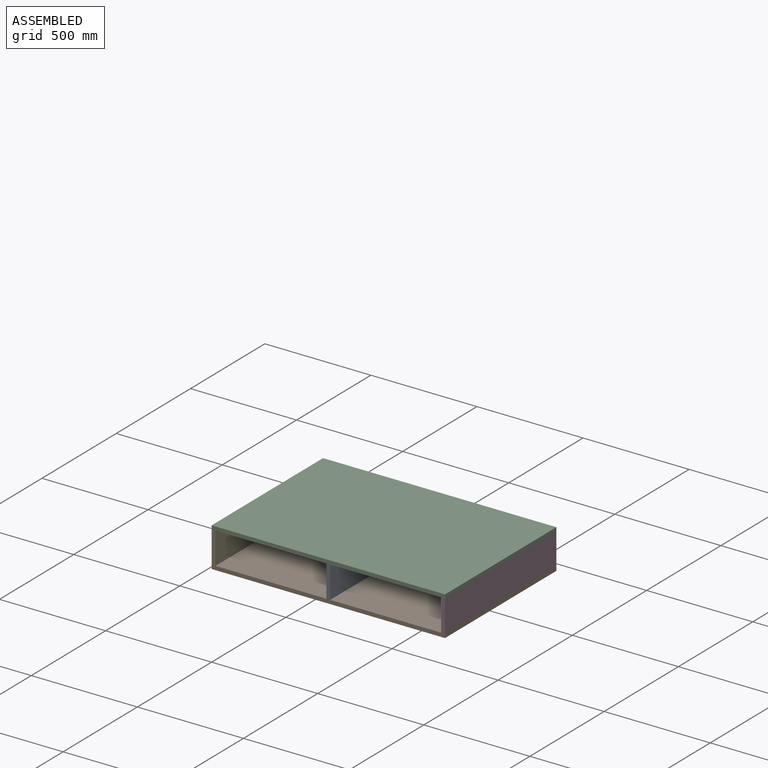
[diagram: assembled view]
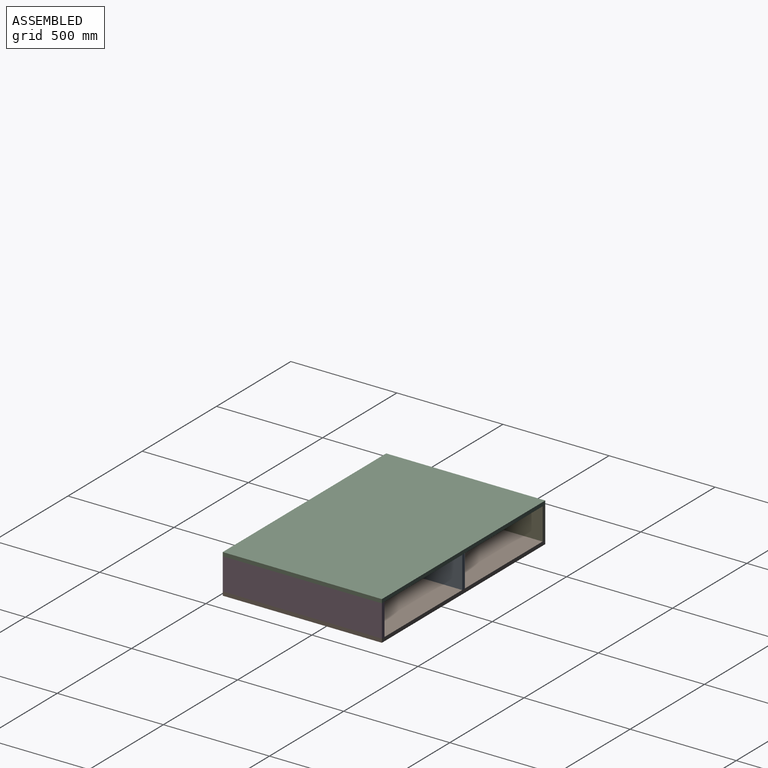
[diagram: assembled view, second angle]
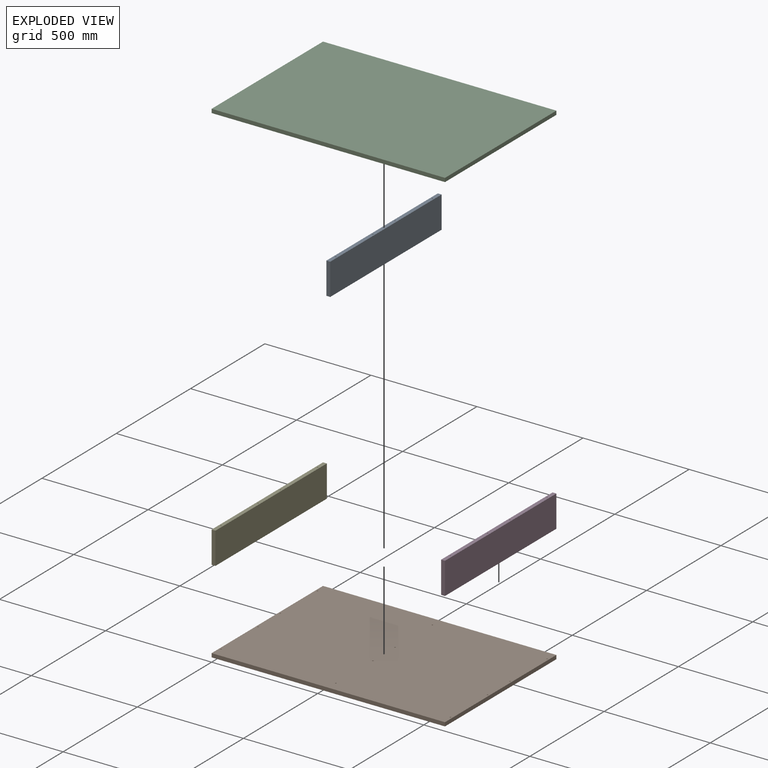
[diagram: exploded view]
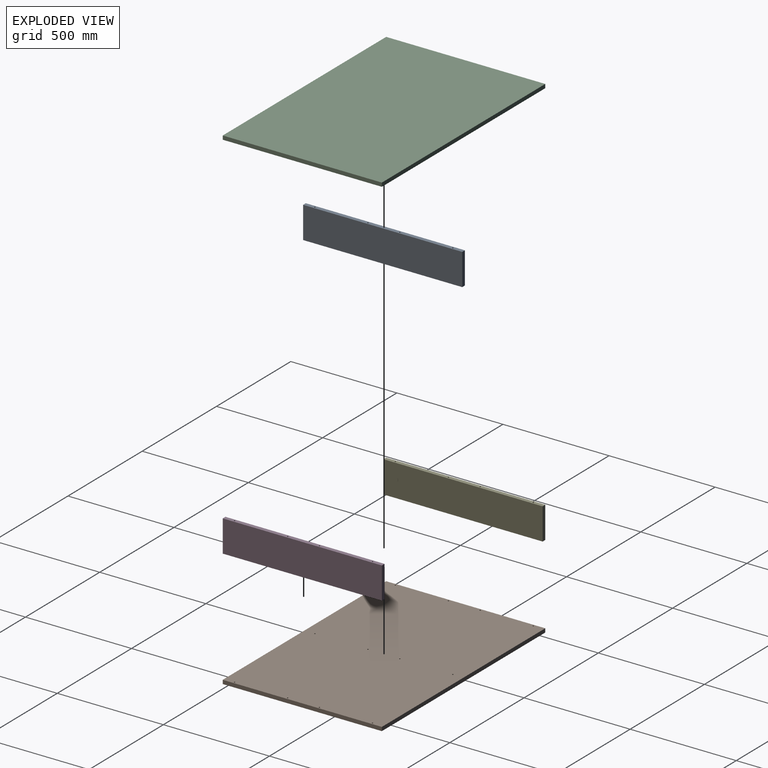
[diagram: exploded view, second angle]
ASSEMBLY  parts=5 mates=4
PART A: 22 faces, bbox 18x750x150 mm
  f0: plane 750x150mm, normal (-1,0,0), area 112500mm2, adj f1,f3,f4,f5
  f1: plane 150x18mm, normal (0,-1,0), area 2700mm2, adj f0,f2,f4,f5
  f2: plane 750x150mm, normal (1,0,0), area 112500mm2, adj f1,f3,f4,f5
  f3: plane 150x18mm, normal (0,1,0), area 2700mm2, adj f0,f2,f4,f5
  f4: plane 750x18mm, normal (0,0,1), area 13386.9mm2, adj f0,f1,f2,f3,f6,f8,f10,f12
  f5: plane 750x18mm, normal (0,0,-1), area 13386.9mm2, adj f0,f1,f2,f3,f14,f16,f18,f20
  f6: cylinder r=3mm len=30mm, axis (0,0,1), area 565.5mm2, adj f4,f7
  f7: plane 6x6mm, normal (0,0,1), area 28.3mm2, adj f6
  f8: cylinder r=3mm len=30mm, axis (0,0,1), area 565.5mm2, adj f4,f9
  f9: plane 6x6mm, normal (0,0,1), area 28.3mm2, adj f8
  f10: cylinder r=3mm len=30mm, axis (0,0,1), area 565.5mm2, adj f4,f11
  f11: plane 6x6mm, normal (0,0,1), area 28.3mm2, adj f10
  f12: cylinder r=3mm len=30mm, axis (0,0,1), area 565.5mm2, adj f4,f13
  f13: plane 6x6mm, normal (0,0,1), area 28.3mm2, adj f12
  f14: cylinder r=3mm len=30mm, axis (0,0,-1), area 565.5mm2, adj f5,f15
  f15: plane 6x6mm, normal (0,0,-1), area 28.3mm2, adj f14
  f16: cylinder r=3mm len=30mm, axis (0,0,-1), area 565.5mm2, adj f5,f17
  f17: plane 6x6mm, normal (0,0,-1), area 28.3mm2, adj f16
  f18: cylinder r=3mm len=30mm, axis (0,0,-1), area 565.5mm2, adj f5,f19
  f19: plane 6x6mm, normal (0,0,-1), area 28.3mm2, adj f18
  f20: cylinder r=3mm len=30mm, axis (0,0,-1), area 565.5mm2, adj f5,f21
  f21: plane 6x6mm, normal (0,0,-1), area 28.3mm2, adj f20
PART B: 30 faces, bbox 1100x750x18 mm
  f0: plane 750x18mm, normal (-1,0,0), area 13500mm2, adj f1,f3,f4,f5
  f1: plane 1100x18mm, normal (0,-1,0), area 19800mm2, adj f0,f2,f4,f5
  f2: plane 750x18mm, normal (1,0,0), area 13500mm2, adj f1,f3,f4,f5
  f3: plane 1100x18mm, normal (0,1,0), area 19800mm2, adj f0,f2,f4,f5
  f4: plane 1100x750mm, normal (0,0,1), area 824660.7mm2, adj f0,f1,f2,f3,f6,f8,f10,f12
  f5: plane 1100x750mm, normal (0,0,-1), area 825000mm2, adj f0,f1,f2,f3
  f6: cylinder r=3mm len=9mm, axis (0,0,1), area 169.6mm2, adj f4,f7
  f7: plane 6x6mm, normal (0,0,1), area 28.3mm2, adj f6
  f8: cylinder r=3mm len=9mm, axis (0,0,1), area 169.6mm2, adj f4,f9
  f9: plane 6x6mm, normal (0,0,1), area 28.3mm2, adj f8
  f10: cylinder r=3mm len=9mm, axis (0,0,1), area 169.6mm2, adj f4,f11
  f11: plane 6x6mm, normal (0,0,1), area 28.3mm2, adj f10
  f12: cylinder r=3mm len=9mm, axis (0,0,1), area 169.6mm2, adj f4,f13
  f13: plane 6x6mm, normal (0,0,1), area 28.3mm2, adj f12
  f14: cylinder r=3mm len=9mm, axis (0,0,1), area 169.6mm2, adj f4,f15
  f15: plane 6x6mm, normal (0,0,1), area 28.3mm2, adj f14
  f16: cylinder r=3mm len=9mm, axis (0,0,1), area 169.6mm2, adj f4,f17
  f17: plane 6x6mm, normal (0,0,1), area 28.3mm2, adj f16
  f18: cylinder r=3mm len=9mm, axis (0,0,1), area 169.6mm2, adj f4,f19
  f19: plane 6x6mm, normal (0,0,1), area 28.3mm2, adj f18
  f20: cylinder r=3mm len=9mm, axis (0,0,1), area 169.6mm2, adj f4,f21
  f21: plane 6x6mm, normal (0,0,1), area 28.3mm2, adj f20
  f22: cylinder r=3mm len=9mm, axis (0,0,1), area 169.6mm2, adj f4,f23
  f23: plane 6x6mm, normal (0,0,1), area 28.3mm2, adj f22
  f24: cylinder r=3mm len=9mm, axis (0,0,1), area 169.6mm2, adj f4,f25
  f25: plane 6x6mm, normal (0,0,1), area 28.3mm2, adj f24
  f26: cylinder r=3mm len=9mm, axis (0,0,1), area 169.6mm2, adj f4,f27
  f27: plane 6x6mm, normal (0,0,1), area 28.3mm2, adj f26
  f28: cylinder r=3mm len=9mm, axis (0,0,1), area 169.6mm2, adj f4,f29
  f29: plane 6x6mm, normal (0,0,1), area 28.3mm2, adj f28
PART C: same geometry as B
PART D: same geometry as A
PART E: same geometry as A
PLACE A t=(541,0,18)mm
PLACE B at identity
PLACE C rot(axis=(1,0,0),180deg) t=(0,750,186)mm
PLACE D t=(1082,0,18)mm
PLACE E t=(0,0,18)mm
MATE fastened E.f6 <-> B.f6  axis (0,0,-1) through (9,50,18)mm
MATE fastened D.f6 <-> B.f22  axis (0,0,-1) through (1091,50,18)mm
MATE fastened C.f16 <-> E.f6  axis (0,0,-1) through (9,50,168)mm
MATE fastened A.f6 <-> B.f14  axis (0,0,-1) through (550,50,18)mm
